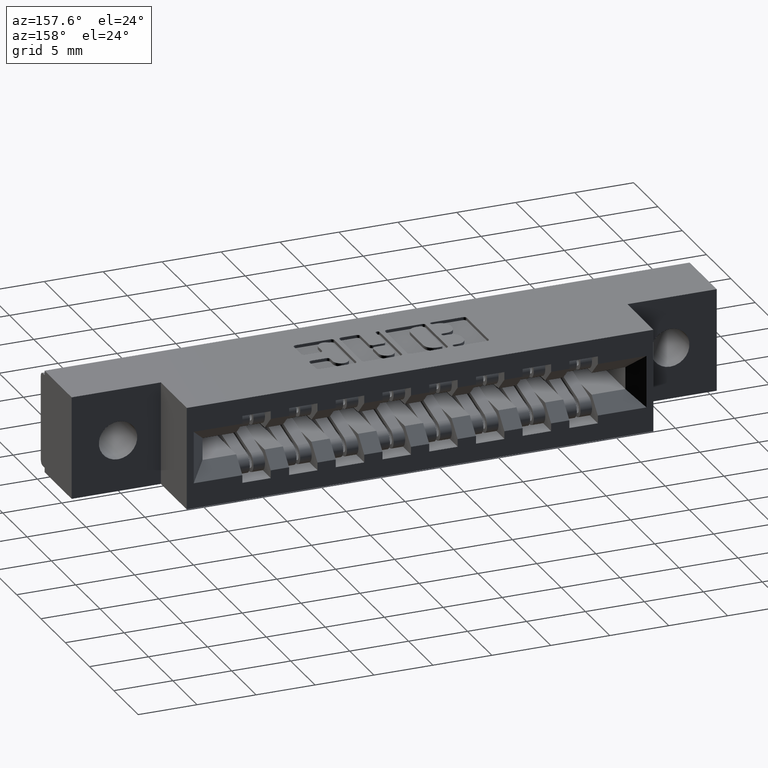
[diagram: clean part render]
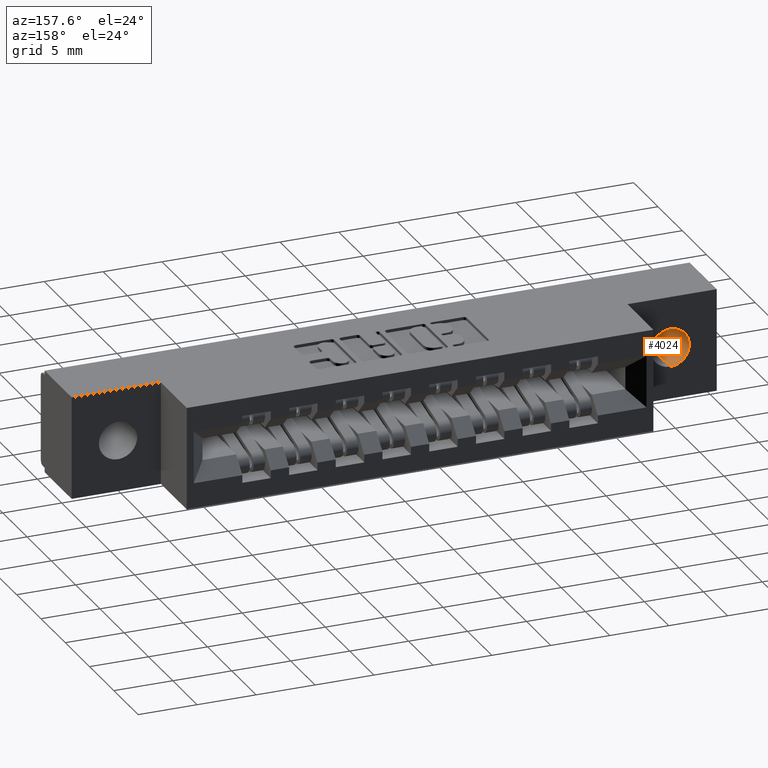
[diagram: same view with one face highlighted and labeled with its STEP entity id]
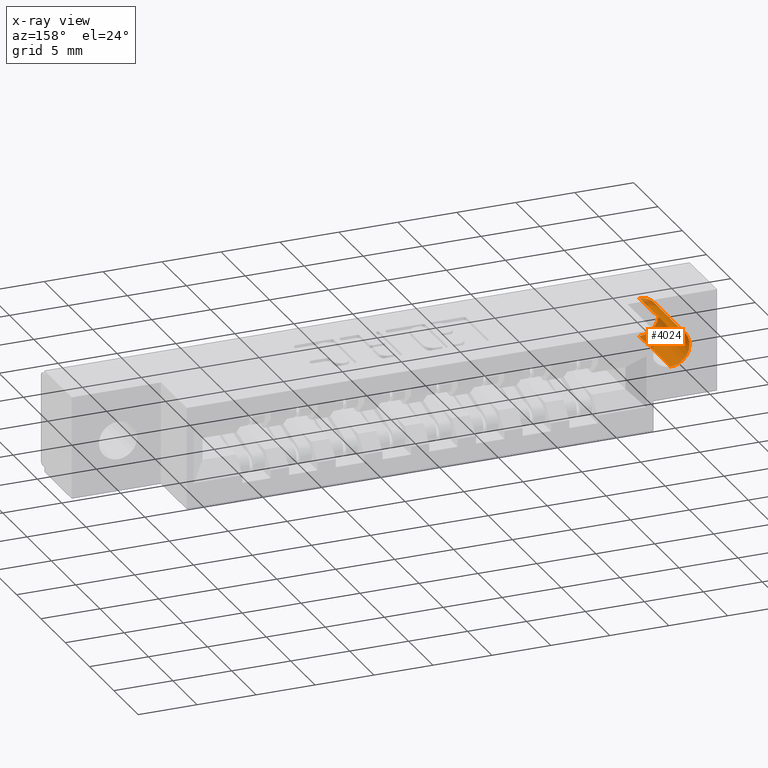
[diagram: x-ray of the same camera — body ghosted, the highlighted face saturated]
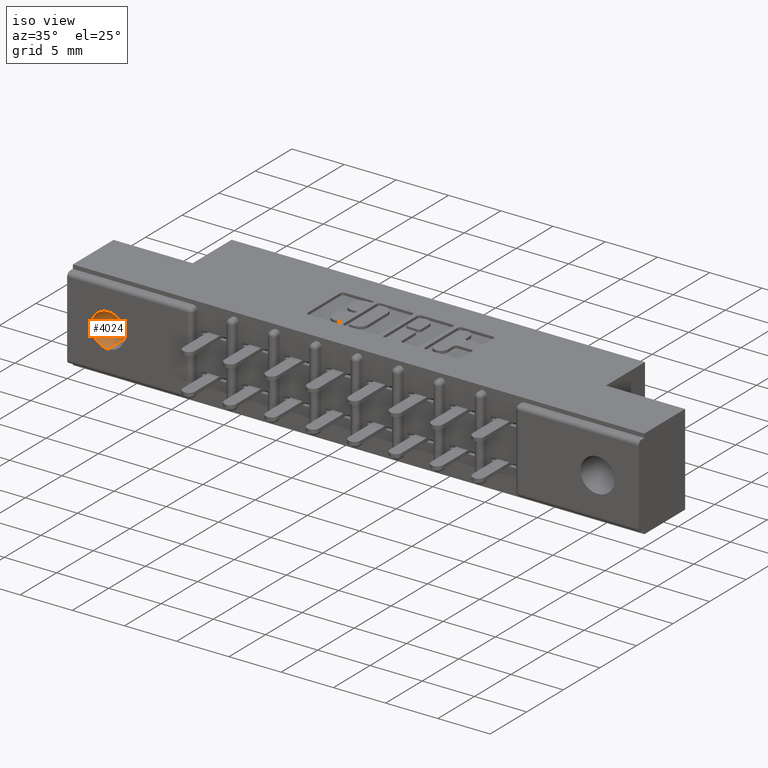
[diagram: same view with one face highlighted and labeled with its STEP entity id]
A machine part, auxiliary view. The second image highlights one B-rep face of the part: STEP entity #4024.
The next image is the same camera in x-ray: the body ghosted, the highlighted face saturated — about 23% of this face is hidden behind the body in this view.
A second angle (iso view) of the same face is appended — the face is thin or edge-on in the first view.
In plain terms, the highlighted cylindrical surface (edge-blend (fillet) strip) has radius 1.6256 mm, axis along (-0, -1, -0).
Its self-contained STEP definition (entity closure, byte-faithful):
#330 = DIRECTION ( 'NONE',  ( 0.0000000000000000000, 0.0000000000000000000, -1.000000000000000000 ) ) ;
#477 = LINE ( 'NONE', #2518, #12263 ) ;
#553 = AXIS2_PLACEMENT_3D ( 'NONE', #3330, #12169, #648 ) ;
#648 = DIRECTION ( 'NONE',  ( 0.0000000000000000000, 0.0000000000000000000, -1.000000000000000000 ) ) ;
#675 = EDGE_CURVE ( 'NONE', #5703, #3980, #2508, .T. ) ;
#927 = EDGE_CURVE ( 'NONE', #7130, #12433, #8925, .T. ) ;
#1340 = CARTESIAN_POINT ( 'NONE',  ( 0.1549999999999998600, 0.0000000000000000000, -0.1715000000000000100 ) ) ;
#1645 = ORIENTED_EDGE ( 'NONE', *, *, #675, .F. ) ;
#2092 = CARTESIAN_POINT ( 'NONE',  ( 0.1549999999999998600, 0.4600000000000000200, -0.1715000000000000100 ) ) ;
#2508 = CIRCLE ( 'NONE', #553, 0.06399999999999998700 ) ;
#2518 = CARTESIAN_POINT ( 'NONE',  ( 0.1549999999999998600, 0.4600000000000000200, -0.1075000000000000100 ) ) ;
#2727 = LINE ( 'NONE', #10977, #10855 ) ;
#3171 = DIRECTION ( 'NONE',  ( -0.0000000000000000000, -1.000000000000000000, -0.0000000000000000000 ) ) ;
#3330 = CARTESIAN_POINT ( 'NONE',  ( 0.1549999999999998600, 0.2500000000000000600, -0.1715000000000000100 ) ) ;
#3577 = EDGE_LOOP ( 'NONE', ( #1645, #11111, #7079, #7650 ) ) ;
#3980 = VERTEX_POINT ( 'NONE', #8005 ) ;
#4024 = ADVANCED_FACE ( 'NONE', ( #11823 ), #12447, .F. ) ;
#5703 = VERTEX_POINT ( 'NONE', #8996 ) ;
#6142 = CARTESIAN_POINT ( 'NONE',  ( 0.1549999999999998600, 0.0000000000000000000, -0.2354999999999999900 ) ) ;
#6147 = DIRECTION ( 'NONE',  ( 0.0000000000000000000, 0.0000000000000000000, -1.000000000000000000 ) ) ;
#6975 = EDGE_CURVE ( 'NONE', #3980, #12433, #2727, .T. ) ;
#7079 = ORIENTED_EDGE ( 'NONE', *, *, #927, .T. ) ;
#7130 = VERTEX_POINT ( 'NONE', #11730 ) ;
#7650 = ORIENTED_EDGE ( 'NONE', *, *, #6975, .F. ) ;
#8005 = CARTESIAN_POINT ( 'NONE',  ( 0.1549999999999998600, 0.2500000000000000600, -0.2354999999999999900 ) ) ;
#8925 = CIRCLE ( 'NONE', #10720, 0.06399999999999998700 ) ;
#8996 = CARTESIAN_POINT ( 'NONE',  ( 0.1549999999999998600, 0.2500000000000000600, -0.1075000000000000100 ) ) ;
#10361 = DIRECTION ( 'NONE',  ( -0.0000000000000000000, -1.000000000000000000, -0.0000000000000000000 ) ) ;
#10720 = AXIS2_PLACEMENT_3D ( 'NONE', #1340, #12132, #330 ) ;
#10855 = VECTOR ( 'NONE', #10937, 39.37007874015748100 ) ;
#10937 = DIRECTION ( 'NONE',  ( -0.0000000000000000000, -1.000000000000000000, -0.0000000000000000000 ) ) ;
#10977 = CARTESIAN_POINT ( 'NONE',  ( 0.1549999999999998600, 0.4600000000000000200, -0.2354999999999999900 ) ) ;
#11111 = ORIENTED_EDGE ( 'NONE', *, *, #11695, .T. ) ;
#11417 = AXIS2_PLACEMENT_3D ( 'NONE', #2092, #3171, #6147 ) ;
#11695 = EDGE_CURVE ( 'NONE', #5703, #7130, #477, .T. ) ;
#11730 = CARTESIAN_POINT ( 'NONE',  ( 0.1549999999999998600, 0.0000000000000000000, -0.1075000000000000100 ) ) ;
#11823 = FACE_OUTER_BOUND ( 'NONE', #3577, .T. ) ;
#12132 = DIRECTION ( 'NONE',  ( 0.0000000000000000000, -1.000000000000000000, 0.0000000000000000000 ) ) ;
#12169 = DIRECTION ( 'NONE',  ( 0.0000000000000000000, -1.000000000000000000, 0.0000000000000000000 ) ) ;
#12263 = VECTOR ( 'NONE', #10361, 39.37007874015748100 ) ;
#12433 = VERTEX_POINT ( 'NONE', #6142 ) ;
#12447 = CYLINDRICAL_SURFACE ( 'NONE', #11417, 0.06399999999999998700 ) ;